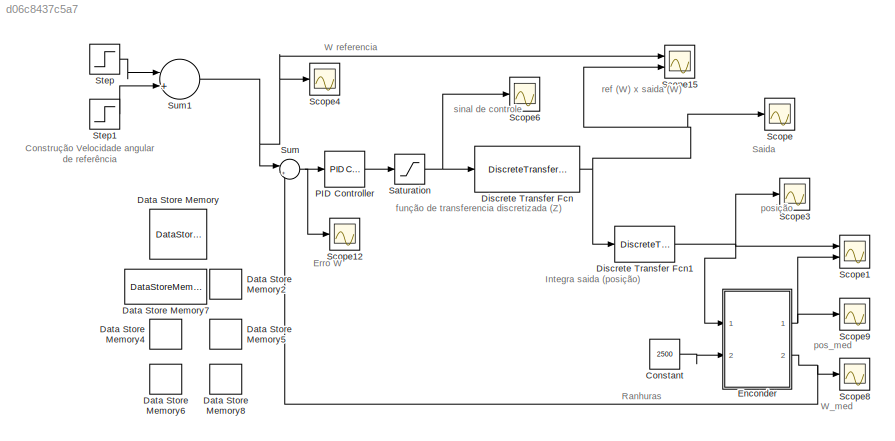
MODEL slx_d06c8437c5a7
KIND model
CONFIG AbsTol = auto
CONFIG EnableMultiTasking = off
CONFIG FixedStep = 0.001
CONFIG MaxStep = auto
CONFIG MinStep = auto
CONFIG RelTol = 1e-3
CONFIG SampleTimeConstraint = Unconstrained
CONFIG Solver = FixedStepDiscrete
CONFIG SolverName = FixedStepDiscrete
CONFIG StartTime = 0.0
CONFIG StopTime = 4
BLOCK [Constant] Constant
  SampleTime = -1
  Value = 2500
BLOCK [DataStoreMemory] Data Store Memory
  DataStoreName = T_inicial
  ReadBeforeWriteMsg = warning
  ShowAdditionalParam = off
  WriteAfterReadMsg = warning
  WriteAfterWriteMsg = warning
BLOCK [DataStoreMemory] Data Store Memory2
  DataStoreName = P
  ReadBeforeWriteMsg = warning
  ShowAdditionalParam = off
  WriteAfterReadMsg = warning
  WriteAfterWriteMsg = warning
BLOCK [DataStoreMemory] Data Store Memory4
  DataStoreName = W
  ReadBeforeWriteMsg = warning
  ShowAdditionalParam = off
  WriteAfterReadMsg = warning
  WriteAfterWriteMsg = warning
BLOCK [DataStoreMemory] Data Store Memory5
  DataStoreName = EPos
  ReadBeforeWriteMsg = warning
  ShowAdditionalParam = off
  WriteAfterReadMsg = warning
  WriteAfterWriteMsg = warning
BLOCK [DataStoreMemory] Data Store Memory6
  DataStoreName = EW
  ReadBeforeWriteMsg = warning
  ShowAdditionalParam = off
  WriteAfterReadMsg = warning
  WriteAfterWriteMsg = warning
BLOCK [DataStoreMemory] Data Store Memory7
  DataStoreName = INICIAL
  ReadBeforeWriteMsg = warning
  ShowAdditionalParam = off
  WriteAfterReadMsg = warning
  WriteAfterWriteMsg = warning
BLOCK [DataStoreMemory] Data Store Memory8
  DataStoreName = D_T
  ReadBeforeWriteMsg = warning
  ShowAdditionalParam = off
  WriteAfterReadMsg = warning
  WriteAfterWriteMsg = warning
BLOCK [DiscreteTransferFcn] Discrete Transfer Fcn
  Denominator = [1.0000   -1.5971    0.6008]
  InputPortMap = u0
  Numerator = [ 0    0.0362    0.0306]
  Ports = [1, 1]
BLOCK [DiscreteTransferFcn] Discrete Transfer Fcn1
  Denominator = [ 1 -1]
  InputPortMap = u0
  Numerator = [ 0    0.001]
  Ports = [1, 1]
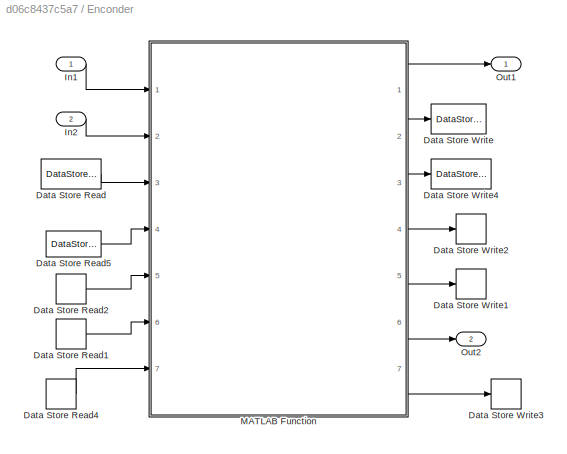
BLOCK [SubSystem] Enconder
  Ports = [2, 2]
  RequestExecContextInheritance = off
BLOCK [DataStoreRead] Enconder/Data Store Read
  DataStoreName = INICIAL
  Ports = [0, 1]
BLOCK [DataStoreRead] Enconder/Data Store Read1
  DataStoreName = D_T
  Ports = [0, 1]
BLOCK [DataStoreRead] Enconder/Data Store Read2
  DataStoreName = P
  Ports = [0, 1]
BLOCK [DataStoreRead] Enconder/Data Store Read4
  DataStoreName = W
  Ports = [0, 1]
BLOCK [DataStoreRead] Enconder/Data Store Read5
  DataStoreName = T_inicial
  Ports = [0, 1]
BLOCK [DataStoreWrite] Enconder/Data Store Write
  DataStoreName = INICIAL
  Ports = [1]
BLOCK [DataStoreWrite] Enconder/Data Store Write1
  DataStoreName = D_T
  Ports = [1]
BLOCK [DataStoreWrite] Enconder/Data Store Write2
  DataStoreName = P
  Ports = [1]
BLOCK [DataStoreWrite] Enconder/Data Store Write3
  DataStoreName = W
  Ports = [1]
BLOCK [DataStoreWrite] Enconder/Data Store Write4
  DataStoreName = T_inicial
  Ports = [1]
BLOCK [Inport] Enconder/In1
  IconDisplay = Port number
BLOCK [Inport] Enconder/In2
  IconDisplay = Port number
  Port = 2
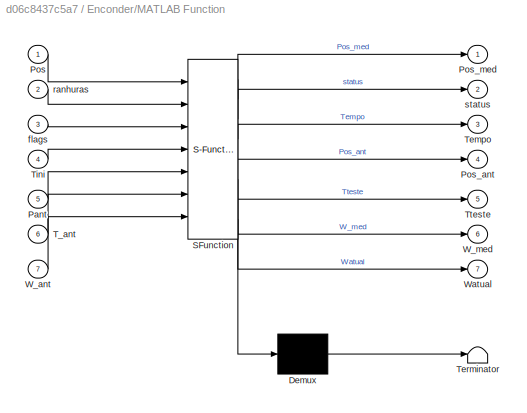
BLOCK [SubSystem] Enconder/MATLAB Function
  ErrorFcn = Stateflow.Translate.translate
  PermitHierarchicalResolution = ExplicitOnly
  Ports = [7, 7]
  RequestExecContextInheritance = off
  SFBlockType = MATLAB Function
  TreatAsAtomicUnit = on
BLOCK [Demux] Enconder/MATLAB Function/ Demux 
  Outputs = 1
  Ports = [1, 1]
BLOCK [S-Function] Enconder/MATLAB Function/ SFunction 
  EnableBusSupport = on
  FunctionName = sf_sfun
  PortCounts = [7 8]
  Ports = [7, 8]
  SFcnIsStateOwnerBlock = off
  SFunctionDeploymentMode = off
  Tag = Stateflow S-Function SIMULADOR_ENCODER 2
BLOCK [Terminator] Enconder/MATLAB Function/ Terminator 
BLOCK [Inport] Enconder/MATLAB Function/Pant
  IconDisplay = Port number
  Port = 5
BLOCK [Inport] Enconder/MATLAB Function/Pos
  IconDisplay = Port number
BLOCK [Outport] Enconder/MATLAB Function/Pos_ant
  IconDisplay = Port number
  Port = 4
BLOCK [Outport] Enconder/MATLAB Function/Pos_med
  IconDisplay = Port number
BLOCK [Inport] Enconder/MATLAB Function/T_ant
  IconDisplay = Port number
  Port = 6
BLOCK [Outport] Enconder/MATLAB Function/Tempo
  IconDisplay = Port number
  Port = 3
BLOCK [Inport] Enconder/MATLAB Function/Tini
  IconDisplay = Port number
  Port = 4
BLOCK [Outport] Enconder/MATLAB Function/Tteste
  IconDisplay = Port number
  Port = 5
BLOCK [Inport] Enconder/MATLAB Function/W_ant
  IconDisplay = Port number
  Port = 7
BLOCK [Outport] Enconder/MATLAB Function/W_med
  IconDisplay = Port number
  Port = 6
BLOCK [Outport] Enconder/MATLAB Function/Watual
  IconDisplay = Port number
  Port = 7
BLOCK [Inport] Enconder/MATLAB Function/flags
  IconDisplay = Port number
  Port = 3
BLOCK [Inport] Enconder/MATLAB Function/ranhuras
  IconDisplay = Port number
  Port = 2
BLOCK [Outport] Enconder/MATLAB Function/status
  IconDisplay = Port number
  Port = 2
BLOCK [Outport] Enconder/Out1
  IconDisplay = Port number
BLOCK [Outport] Enconder/Out2
  IconDisplay = Port number
  Port = 2
BLOCK [Reference] PID Controller  REF=simulink/Continuous/PID Controller
  Ports = [1, 1]
  SourceBlock = simulink/Continuous/PID Controller
  SourceProductBaseCode = SL
  SourceProductName = Simulink
  SourceType = PID 1dof
BLOCK [Saturate] Saturation
  InputPortMap = u0
  LowerLimit = -30
  Ports = [1, 1]
  UpperLimit = 30
BLOCK [Scope] Scope
  Floating = off
  NumInputPorts = 1
  Ports = [1]
  ScopeSpecificationString = Simulink.scopes.TimeScopeBlockCfg('CurrentConfiguration', extmgr.ConfigurationSet(extmgr.Configuration('Core','General UI',true),extmgr.Configuration('Core','Source UI',true),extmgr.Configuration('Sources','WiredSimulink',true,'DataLoggingVariableName','ScopeData1'),extmgr.Configuration('Visuals','Time Domain',true,'SerializedDisplays',{struct('MinYLimReal','-379.06487','MaxYLimReal','292.89917','...<+1394ch>
BLOCK [Scope] Scope1
  Floating = off
  NumInputPorts = 2
  Ports = [2]
  ScopeSpecificationString = Simulink.scopes.TimeScopeBlockCfg('CurrentConfiguration', extmgr.ConfigurationSet(extmgr.Configuration('Core','General UI',true),extmgr.Configuration('Core','Source UI',true),extmgr.Configuration('Sources','WiredSimulink',true,'DataLoggingVariableName','posiComp100'),extmgr.Configuration('Visuals','Time Domain',true,'SerializedDisplays',{struct('MinYLimReal','65.13681','MaxYLimReal','80.81525','YL...<+1475ch>
BLOCK [Scope] Scope12
  Floating = off
  NumInputPorts = 1
  Ports = [1]
  ScopeSpecificationString = Simulink.scopes.TimeScopeBlockCfg('CurrentConfiguration', extmgr.ConfigurationSet(extmgr.Configuration('Core','General UI',true),extmgr.Configuration('Core','Source UI',true),extmgr.Configuration('Sources','WiredSimulink',true,'DataLoggingVariableName','ScopeData12'),extmgr.Configuration('Visuals','Time Domain',true,'SerializedDisplays',{struct('MinYLimReal','-285.00994','MaxYLimReal','165.0011','...<+1445ch>
BLOCK [Scope] Scope15
  Floating = off
  NumInputPorts = 2
  Ports = [2]
  ScopeSpecificationString = Simulink.scopes.TimeScopeBlockCfg('CurrentConfiguration', extmgr.ConfigurationSet(extmgr.Configuration('Core','General UI',true,'FigureColor',[1 1 1]),extmgr.Configuration('Core','Source UI',true),extmgr.Configuration('Sources','WiredSimulink',true,'DataLoggingVariableName','refSaida180'),extmgr.Configuration('Visuals','Time Domain',true,'SerializedDisplays',{struct('MinYLimReal','-227.77503','Max...<+1683ch>
BLOCK [Scope] Scope3
  Floating = off
  NumInputPorts = 1
  Ports = [1]
  ScopeSpecificationString = Simulink.scopes.TimeScopeBlockCfg('CurrentConfiguration', extmgr.ConfigurationSet(extmgr.Configuration('Core','General UI',true),extmgr.Configuration('Core','Source UI',true),extmgr.Configuration('Sources','WiredSimulink',true,'DataLoggingVariableName','ScopeData11'),extmgr.Configuration('Visuals','Time Domain',true,'SerializedDisplays',{struct('MinYLimReal','-45.27948','MaxYLimReal','407.51533','...<+1417ch>
BLOCK [Scope] Scope4
  Floating = off
  NumInputPorts = 1
  Ports = [1]
  ScopeSpecificationString = Simulink.scopes.TimeScopeBlockCfg('CurrentConfiguration', extmgr.ConfigurationSet(extmgr.Configuration('Core','General UI',true,'FigureColor',[1 1 1]),extmgr.Configuration('Core','Source UI',true),extmgr.Configuration('Sources','WiredSimulink',true,'DataLoggingVariableName','ref30'),extmgr.Configuration('Visuals','Time Domain',true,'SerializedDisplays',{struct('MinYLimReal','-150.00000','MaxYLimRe...<+1623ch>
BLOCK [Scope] Scope6
  Floating = off
  NumInputPorts = 1
  Ports = [1]
  ScopeSpecificationString = Simulink.scopes.TimeScopeBlockCfg('CurrentConfiguration', extmgr.ConfigurationSet(extmgr.Configuration('Core','General UI',true),extmgr.Configuration('Core','Source UI',true),extmgr.Configuration('Sources','WiredSimulink',true,'DataLoggingVariableName','SINAL60','DataLogging',true),extmgr.Configuration('Visuals','Time Domain',true,'SerializedDisplays',{struct('MinYLimReal','-4.08123','MaxYLimReal'...<+1455ch>
BLOCK [Scope] Scope8
  Floating = off
  NumInputPorts = 1
  Ports = [1]
  ScopeSpecificationString = Simulink.scopes.TimeScopeBlockCfg('CurrentConfiguration', extmgr.ConfigurationSet(extmgr.Configuration('Core','General UI',true),extmgr.Configuration('Core','Source UI',true),extmgr.Configuration('Sources','WiredSimulink',true,'DataLoggingVariableName','Wmed2500','DataLoggingSaveFormat','Array'),extmgr.Configuration('Visuals','Time Domain',true,'SerializedDisplays',{struct('MinYLimReal','-229.4933...<+1485ch>
BLOCK [Scope] Scope9
  Floating = off
  NumInputPorts = 1
  Ports = [1]
  ScopeSpecificationString = Simulink.scopes.TimeScopeBlockCfg('CurrentConfiguration', extmgr.ConfigurationSet(extmgr.Configuration('Core','General UI',true),extmgr.Configuration('Core','Source UI',true),extmgr.Configuration('Sources','WiredSimulink',true,'DataLoggingVariableName','ScopeData8'),extmgr.Configuration('Visuals','Time Domain',true,'SerializedDisplays',{struct('MinYLimReal','-30.07682','MaxYLimReal','270.6914','YL...<+1454ch>
BLOCK [Step] Step
  After = 120
  SampleTime = 0
  Time = 0
BLOCK [Step] Step1
  After = 240
  SampleTime = 0
  Time = 2
BLOCK [Sum] Sum
  IconShape = round
  InputSameDT = off
  Inputs = |+-
  OutDataTypeStr = Inherit: Inherit via internal rule
  Ports = [2, 1]
  SaturateOnIntegerOverflow = off
BLOCK [Sum] Sum1
  IconShape = round
  InputSameDT = off
  Inputs = |+-
  OutDataTypeStr = Inherit: Inherit via internal rule
  Ports = [2, 1]
  SaturateOnIntegerOverflow = off
ANNOTATION (root): Construção Velocidade angular de referência
ANNOTATION (root): Erro W
ANNOTATION (root): Integra saida (posição)
ANNOTATION (root): Ranhuras
ANNOTATION (root): Saida
ANNOTATION (root): W referencia
ANNOTATION (root): W_med
ANNOTATION (root): função de transferencia discretizada (Z)
ANNOTATION (root): pos_med
ANNOTATION (root): posição
ANNOTATION (root): ref (W) x saida (W)
ANNOTATION (root): sinal de controle
LINE Constant:1 -> Enconder:2
NET Discrete Transfer Fcn1:1 -> Enconder:1, Scope1:1, Scope3:1
NET Discrete Transfer Fcn:1 -> Discrete Transfer Fcn1:1, Scope15:2, Scope:1
LINE Enconder/Data Store Read1:1 -> Enconder/MATLAB Function:6
LINE Enconder/Data Store Read2:1 -> Enconder/MATLAB Function:5
LINE Enconder/Data Store Read4:1 -> Enconder/MATLAB Function:7
LINE Enconder/Data Store Read5:1 -> Enconder/MATLAB Function:4
LINE Enconder/Data Store Read:1 -> Enconder/MATLAB Function:3
LINE Enconder/In1:1 -> Enconder/MATLAB Function:1
LINE Enconder/In2:1 -> Enconder/MATLAB Function:2
LINE Enconder/MATLAB Function:1 -> Enconder/Out1:1
LINE Enconder/MATLAB Function:2 -> Enconder/Data Store Write:1
LINE Enconder/MATLAB Function:3 -> Enconder/Data Store Write4:1
LINE Enconder/MATLAB Function:4 -> Enconder/Data Store Write2:1
LINE Enconder/MATLAB Function:5 -> Enconder/Data Store Write1:1
LINE Enconder/MATLAB Function:6 -> Enconder/Out2:1
LINE Enconder/MATLAB Function:7 -> Enconder/Data Store Write3:1
NET Enconder:1 -> Scope1:2, Scope9:1
NET Enconder:2 -> Scope8:1, Sum:2
LINE PID Controller:1 -> Saturation:1
NET Saturation:1 -> Discrete Transfer Fcn:1, Scope6:1
LINE Step1:1 -> Sum1:2
LINE Step:1 -> Sum1:1
NET Sum1:1 -> Scope15:1, Scope4:1, Sum:1
NET Sum:1 -> PID Controller:1, Scope12:1
note: NET lines group one-source signal fan-out (src -> all destinations, sorted); 1:1 wires keep LINE
CHART Enconder/MATLAB Function states=1 transitions=1
  STATE_LABEL 'eML_blk_kernel()'
  STATE_LABEL 'SCRIPT:\nfunction [Pos_med,status,Tempo,Pos_ant,Tteste,W_med,Watual]= ENCODER(Pos,ranhuras,flags,Tini, Pant, T_ant,W_ant)\n%define dt\n dt = 0.001;\n temp = 0;\n Pos_ant = 0;\n\nif flags == 0 %inicializa variaves:\n    Pos_med = 0;\n    temp = Tini;\n    Pos_ant = Pos_med;\n    T0=0;\n    Waux=0; \nelse \n    reso_ang = 2*pi/(2* ranhuras);%calcula a resolução linear\n    pulsos = fix(Pos/reso_ang);%Calcula pulso...<+360ch>'
